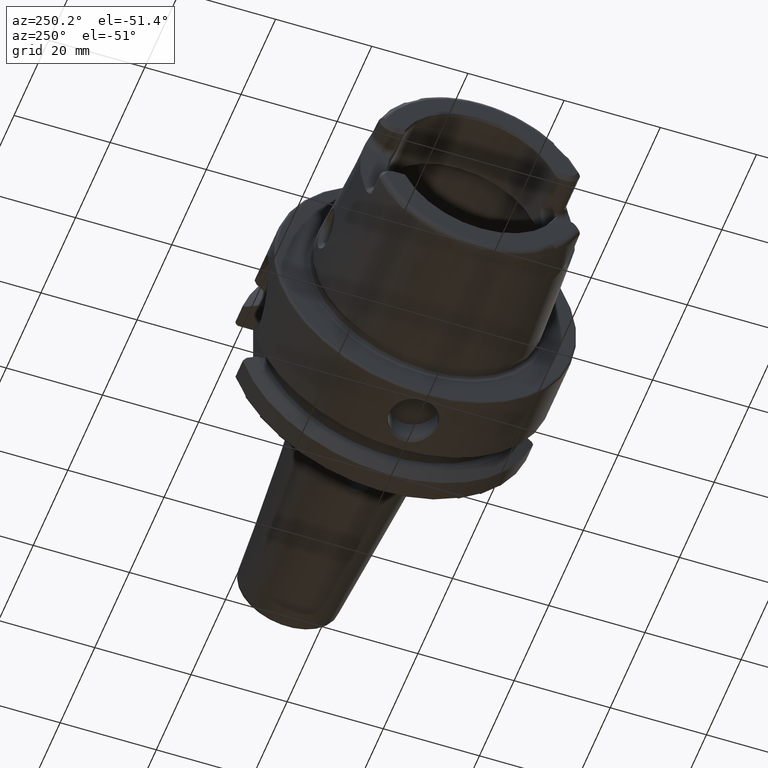
[diagram: clean part render]
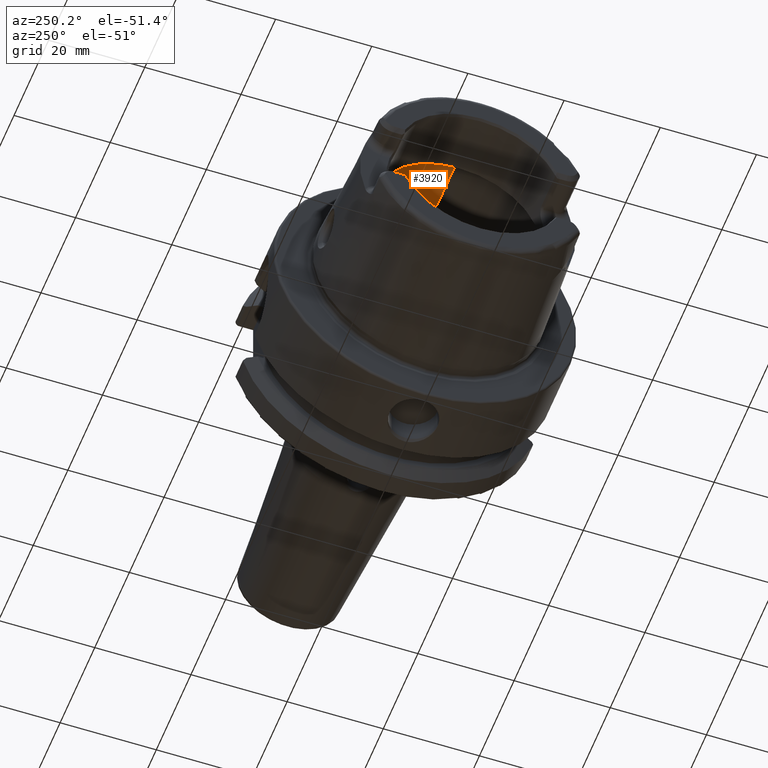
[diagram: same view with one face highlighted and labeled with its STEP entity id]
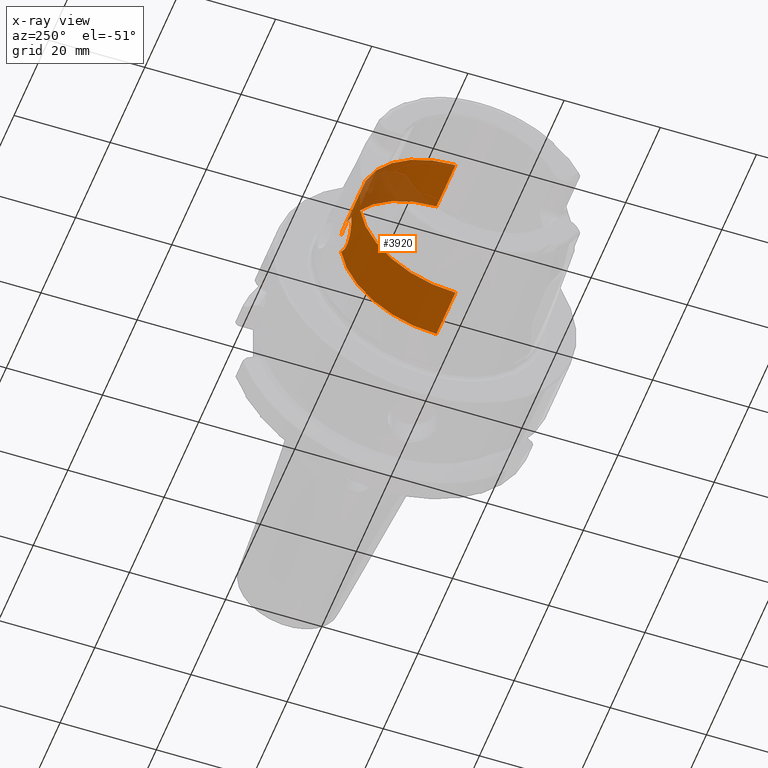
[diagram: x-ray of the same camera — body ghosted, the highlighted face saturated]
A machine part, auxiliary view. The second image highlights one B-rep face of the part: STEP entity #3920.
The next image is the same camera in x-ray: the body ghosted, the highlighted face saturated — about 18% of this face is hidden behind the body in this view.
In plain terms, the highlighted cylindrical surface (partial cylindrical patch) has radius 20 mm, axis along (1, 0, 0).
Its self-contained STEP definition (entity closure, byte-faithful):
#648=CARTESIAN_POINT('',(-6.796840414941E-1,0.E0,0.E0));
#649=DIRECTION('',(1.E0,0.E0,0.E0));
#650=DIRECTION('',(0.E0,0.E0,-1.E0));
#651=AXIS2_PLACEMENT_3D('',#648,#649,#650);
#653=CARTESIAN_POINT('',(-2.460629921260E-1,7.809777292935E-1,
-1.003743998739E-1));
#654=CARTESIAN_POINT('',(-2.524484910152E-1,7.800925012547E-1,
-1.072620463708E-1));
#655=CARTESIAN_POINT('',(-2.664042103441E-1,7.782975441516E-1,
-1.198210517652E-1));
#656=CARTESIAN_POINT('',(-2.928023692533E-1,7.757168360758E-1,
-1.353494148439E-1));
#657=CARTESIAN_POINT('',(-3.209691006274E-1,7.739762676486E-1,
-1.448242366235E-1));
#658=CARTESIAN_POINT('',(-3.504298702615E-1,7.732577317856E-1,
-1.485671470986E-1));
#659=CARTESIAN_POINT('',(-3.798455903992E-1,7.736722009178E-1,
-1.464235007100E-1));
#660=CARTESIAN_POINT('',(-4.086766968532E-1,7.751788154182E-1,
-1.383392127415E-1));
#661=CARTESIAN_POINT('',(-4.349324489261E-1,7.774947338312E-1,
-1.248628726955E-1));
#662=CARTESIAN_POINT('',(-4.581578257033E-1,7.802803366856E-1,
-1.063409174016E-1));
#663=CARTESIAN_POINT('',(-4.770911424619E-1,7.830618997100E-1,
-8.375745262049E-2));
#664=CARTESIAN_POINT('',(-4.912806579868E-1,7.854412114399E-1,
-5.775882548702E-2));
#665=CARTESIAN_POINT('',(-5.000106445959E-1,7.870309940842E-1,
-2.935991372589E-2));
#666=CARTESIAN_POINT('',(-5.019685039370E-1,7.874015708661E-1,
-9.925936088082E-3));
#667=CARTESIAN_POINT('',(-5.019685039370E-1,7.874015708661E-1,0.E0));
#669=CARTESIAN_POINT('',(-2.460629921260E-1,0.E0,0.E0));
#670=DIRECTION('',(1.E0,0.E0,0.E0));
#671=DIRECTION('',(0.E0,0.E0,-1.E0));
#672=AXIS2_PLACEMENT_3D('',#669,#670,#671);
#674=CARTESIAN_POINT('',(-2.460629921260E-1,0.E0,0.E0));
#675=DIRECTION('',(1.E0,0.E0,0.E0));
#676=DIRECTION('',(0.E0,9.918417211620E-1,1.274754884772E-1));
#677=AXIS2_PLACEMENT_3D('',#674,#675,#676);
#679=CARTESIAN_POINT('',(-5.019685039370E-1,7.874015708661E-1,0.E0));
#680=CARTESIAN_POINT('',(-5.019685039370E-1,7.874015708661E-1,
9.932069995995E-3));
#681=CARTESIAN_POINT('',(-5.000081223002E-1,7.870305085561E-1,
2.937477565976E-2));
#682=CARTESIAN_POINT('',(-4.912742792944E-1,7.854401140803E-1,
5.777286605703E-2));
#683=CARTESIAN_POINT('',(-4.770853388601E-1,7.830609125396E-1,
8.376667860321E-2));
#684=CARTESIAN_POINT('',(-4.581479476636E-1,7.802792343336E-1,
1.063478401787E-1));
#685=CARTESIAN_POINT('',(-4.349616426028E-1,7.774979999486E-1,
1.248416878723E-1));
#686=CARTESIAN_POINT('',(-4.087243233155E-1,7.751827730378E-1,
1.383172113561E-1));
#687=CARTESIAN_POINT('',(-3.799564198778E-1,7.736761016122E-1,
1.464029508905E-1));
#688=CARTESIAN_POINT('',(-3.505264718735E-1,7.732575066258E-1,
1.485684582686E-1));
#689=CARTESIAN_POINT('',(-3.211394912884E-1,7.739699419945E-1,
1.448569698805E-1));
#690=CARTESIAN_POINT('',(-2.929888001290E-1,7.757011636302E-1,
1.354388361477E-1));
#691=CARTESIAN_POINT('',(-2.664634454070E-1,7.782896828569E-1,
1.198744937294E-1));
#692=CARTESIAN_POINT('',(-2.524687572930E-1,7.800896917205E-1,
1.072839063632E-1));
#693=CARTESIAN_POINT('',(-2.460629921260E-1,7.809777292935E-1,
1.003743998739E-1));
#828=DIRECTION('',(-1.E0,0.E0,0.E0));
#829=VECTOR('',#828,4.336210493681E-1);
#830=CARTESIAN_POINT('',(-2.460629921260E-1,0.E0,7.874015708661E-1));
#831=LINE('',#830,#829);
#832=DIRECTION('',(-1.E0,0.E0,0.E0));
#833=VECTOR('',#832,4.336210493681E-1);
#834=CARTESIAN_POINT('',(-2.460629921260E-1,0.E0,-7.874015708661E-1));
#835=LINE('',#834,#833);
#2763=CARTESIAN_POINT('',(-6.796840414941E-1,0.E0,-7.874015708661E-1));
#2764=CARTESIAN_POINT('',(-6.796840414941E-1,0.E0,7.874015708661E-1));
#2765=VERTEX_POINT('',#2763);
#2766=VERTEX_POINT('',#2764);
#2771=CARTESIAN_POINT('',(-2.460629921260E-1,0.E0,-7.874015708661E-1));
#2772=VERTEX_POINT('',#2771);
#2773=CARTESIAN_POINT('',(-2.460629921260E-1,0.E0,7.874015708661E-1));
#2774=VERTEX_POINT('',#2773);
#3018=VERTEX_POINT('',#653);
#3019=VERTEX_POINT('',#667);
#3020=VERTEX_POINT('',#693);
#3900=CARTESIAN_POINT('',(0.E0,0.E0,0.E0));
#3901=DIRECTION('',(1.E0,0.E0,0.E0));
#3902=DIRECTION('',(0.E0,0.E0,1.E0));
#3903=AXIS2_PLACEMENT_3D('',#3900,#3901,#3902);
#3904=CYLINDRICAL_SURFACE('',#3903,7.874015708661E-1);
#3906=ORIENTED_EDGE('',*,*,#3905,.F.);
#3908=ORIENTED_EDGE('',*,*,#3907,.F.);
#3910=ORIENTED_EDGE('',*,*,#3909,.T.);
#3911=ORIENTED_EDGE('',*,*,#3894,.T.);
#3913=ORIENTED_EDGE('',*,*,#3912,.F.);
#3915=ORIENTED_EDGE('',*,*,#3914,.F.);
#3917=ORIENTED_EDGE('',*,*,#3916,.F.);
#3918=EDGE_LOOP('',(#3906,#3908,#3910,#3911,#3913,#3915,#3917));
#3919=FACE_OUTER_BOUND('',#3918,.F.);
#3920=ADVANCED_FACE('',(#3919),#3904,.F.);
#652=CIRCLE('',#651,7.874015708661E-1);
#668=B_SPLINE_CURVE_WITH_KNOTS('',3,(#653,#654,#655,#656,#657,#658,#659,#660,
#661,#662,#663,#664,#665,#666,#667),.UNSPECIFIED.,.F.,.F.,(4,1,1,1,1,1,1,1,1,1,
1,1,4),(0.E0,8.333333333333E-2,1.666666666667E-1,2.5E-1,3.333333333333E-1,
4.166666666667E-1,5.E-1,5.833333333333E-1,6.666666666667E-1,7.5E-1,
8.333333333333E-1,9.166666666667E-1,1.E0),.UNSPECIFIED.);
#673=CIRCLE('',#672,7.874015708661E-1);
#678=CIRCLE('',#677,7.874015708661E-1);
#694=B_SPLINE_CURVE_WITH_KNOTS('',3,(#679,#680,#681,#682,#683,#684,#685,#686,
#687,#688,#689,#690,#691,#692,#693),.UNSPECIFIED.,.F.,.F.,(4,1,1,1,1,1,1,1,1,1,
1,1,4),(0.E0,8.333333333333E-2,1.666666666667E-1,2.5E-1,3.333333333333E-1,
4.166666666667E-1,5.E-1,5.833333333333E-1,6.666666666667E-1,7.5E-1,
8.333333333333E-1,9.166666666667E-1,1.E0),.UNSPECIFIED.);
#3894=EDGE_CURVE('',#2765,#2766,#652,.T.);
#3905=EDGE_CURVE('',#3018,#3019,#668,.T.);
#3907=EDGE_CURVE('',#2772,#3018,#673,.T.);
#3909=EDGE_CURVE('',#2772,#2765,#835,.T.);
#3912=EDGE_CURVE('',#2774,#2766,#831,.T.);
#3914=EDGE_CURVE('',#3020,#2774,#678,.T.);
#3916=EDGE_CURVE('',#3019,#3020,#694,.T.);